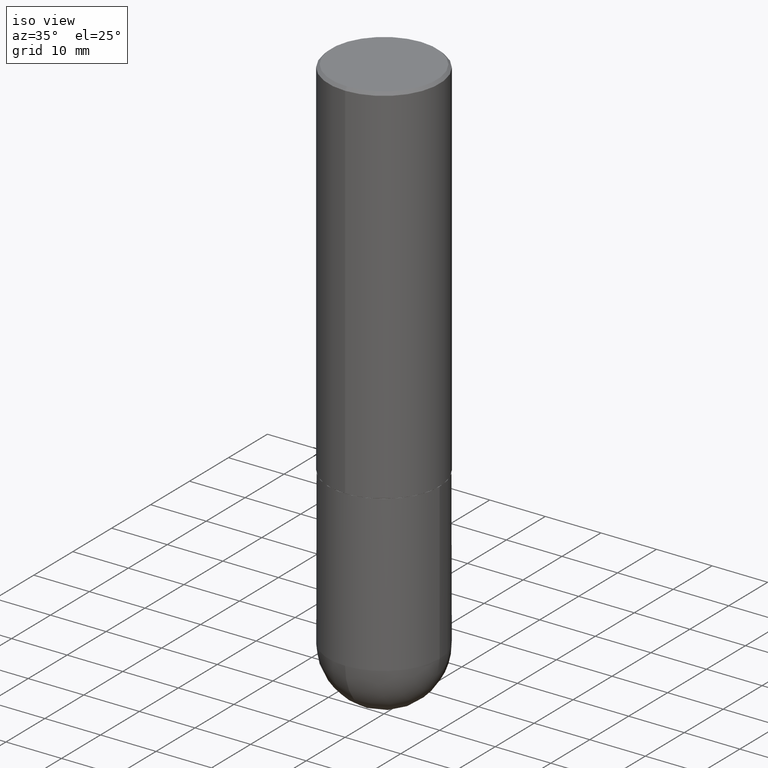
[diagram: clean part render]
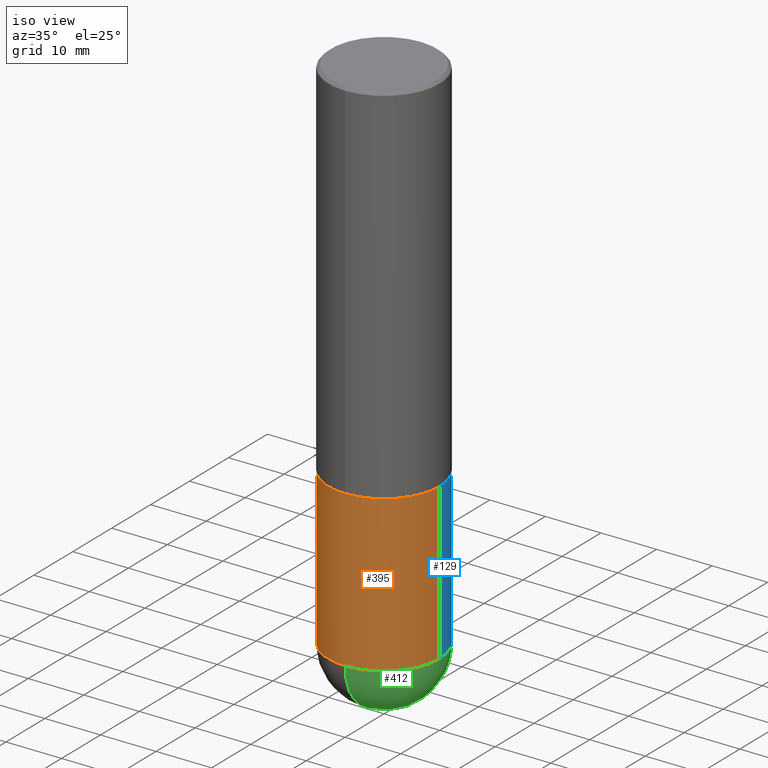
[diagram: same view with three faces highlighted in distinct colors, each labeled with its STEP entity id]
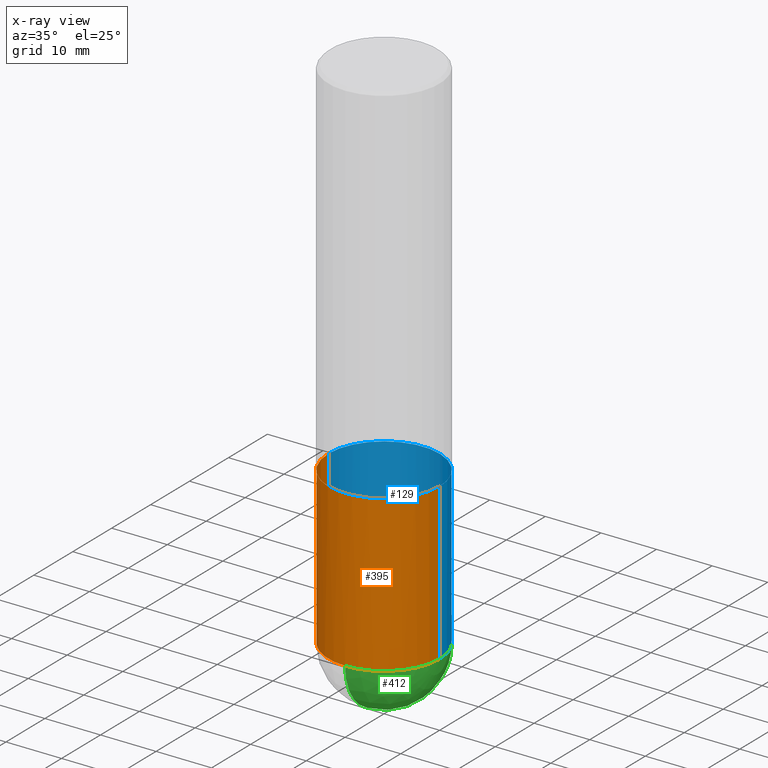
[diagram: x-ray of the same camera — body ghosted, the three highlighted faces saturated]
A machine part, iso view with three faces highlighted in distinct colors.
The next image is the same camera in x-ray (body ghosted, the three faces saturated) — at least one of them is partly hidden behind the body in this view.
Their STEP definitions:

[orange] entity #395 — the highlighted cylindrical surface (partial cylindrical patch) has radius 10 mm, axis along (-0, 0, 1).
#1 = FACE_OUTER_BOUND ( 'NONE', #329, .T. ) ;
#25 = CARTESIAN_POINT ( 'NONE',  ( -2.797406750687426828E-15, -0.3937000000000133171, -3.700799999999998313 ) ) ;
#27 = DIRECTION ( 'NONE',  ( 1.000000000000000000, -6.982962677686267499E-15, 0.000000000000000000 ) ) ;
#29 = VERTEX_POINT ( 'NONE', #403 ) ;
#37 = CYLINDRICAL_SURFACE ( 'NONE', #364, 0.3937000000000001054 ) ;
#48 = EDGE_CURVE ( 'NONE', #225, #232, #393, .T. ) ;
#51 = CARTESIAN_POINT ( 'NONE',  ( -0.3937000000000001054, 2.797406750687515181E-15, -1.936584745033357016E-29 ) ) ;
#60 = DIRECTION ( 'NONE',  ( 1.000000000000000000, -6.982962677686266711E-15, 0.000000000000000000 ) ) ;
#66 = DIRECTION ( 'NONE',  ( -2.445468806185136597E-29, 3.491481338843145583E-15, 1.000000000000000000 ) ) ;
#77 = EDGE_CURVE ( 'NONE', #29, #350, #242, .T. ) ;
#82 = CARTESIAN_POINT ( 'NONE',  ( -0.3937000000000001054, -8.199362874132859889E-15, -3.700800000000000090 ) ) ;
#89 = DIRECTION ( 'NONE',  ( 1.000000000000000000, -6.982962677686266711E-15, 4.876176775795935793E-29 ) ) ;
#94 = AXIS2_PLACEMENT_3D ( 'NONE', #179, #247, #60 ) ;
#102 = ORIENTED_EDGE ( 'NONE', *, *, #351, .F. ) ;
#128 = ORIENTED_EDGE ( 'NONE', *, *, #236, .T. ) ;
#130 = AXIS2_PLACEMENT_3D ( 'NONE', #277, #66, #320 ) ;
#150 = DIRECTION ( 'NONE',  ( -2.445468806185136597E-29, 3.491481338843145583E-15, 1.000000000000000000 ) ) ;
#165 = AXIS2_PLACEMENT_3D ( 'NONE', #288, #150, #27 ) ;
#166 = VERTEX_POINT ( 'NONE', #25 ) ;
#176 = CIRCLE ( 'NONE', #94, 0.3937000000000001054 ) ;
#179 = CARTESIAN_POINT ( 'NONE',  ( 9.050190957929953666E-29, -1.292127413879071357E-14, -3.700800000000000090 ) ) ;
#186 = CARTESIAN_POINT ( 'NONE',  ( 0.000000000000000000, 0.000000000000000000, 0.000000000000000000 ) ) ;
#200 = VECTOR ( 'NONE', #204, 39.37007874015748143 ) ;
#204 = DIRECTION ( 'NONE',  ( -2.445468806185136877E-29, 3.491481338843145188E-15, 1.000000000000000000 ) ) ;
#225 = VERTEX_POINT ( 'NONE', #82 ) ;
#232 = VERTEX_POINT ( 'NONE', #405 ) ;
#236 = EDGE_CURVE ( 'NONE', #166, #29, #176, .T. ) ;
#239 = CARTESIAN_POINT ( 'NONE',  ( 0.3937000000000001054, -2.749192406205084005E-15, 1.919750796630860452E-29 ) ) ;
#242 = LINE ( 'NONE', #239, #200 ) ;
#244 = DIRECTION ( 'NONE',  ( -2.445468806185136877E-29, 3.491481338843145188E-15, 1.000000000000000000 ) ) ;
#247 = DIRECTION ( 'NONE',  ( -2.445468806185136597E-29, 3.491481338843145583E-15, 1.000000000000000000 ) ) ;
#260 = ORIENTED_EDGE ( 'NONE', *, *, #368, .T. ) ;
#277 = CARTESIAN_POINT ( 'NONE',  ( 9.050190957929953666E-29, -1.292127413879071357E-14, -3.700800000000000090 ) ) ;
#287 = ORIENTED_EDGE ( 'NONE', *, *, #48, .F. ) ;
#288 = CARTESIAN_POINT ( 'NONE',  ( 6.354306145991459756E-29, -9.072265110850031044E-15, -2.598400000000000265 ) ) ;
#294 = ORIENTED_EDGE ( 'NONE', *, *, #77, .T. ) ;
#296 = VECTOR ( 'NONE', #244, 39.37007874015748143 ) ;
#319 = DIRECTION ( 'NONE',  ( -2.445468806185136597E-29, 3.491481338843145583E-15, 1.000000000000000000 ) ) ;
#320 = DIRECTION ( 'NONE',  ( 1.000000000000000000, -6.982962677686266711E-15, 0.000000000000000000 ) ) ;
#322 = CIRCLE ( 'NONE', #130, 0.3937000000000001054 ) ;
#326 = CIRCLE ( 'NONE', #165, 0.3937000000000000499 ) ;
#329 = EDGE_LOOP ( 'NONE', ( #287, #260, #128, #294, #102 ) ) ;
#350 = VERTEX_POINT ( 'NONE', #372 ) ;
#351 = EDGE_CURVE ( 'NONE', #232, #350, #326, .T. ) ;
#364 = AXIS2_PLACEMENT_3D ( 'NONE', #186, #319, #89 ) ;
#368 = EDGE_CURVE ( 'NONE', #225, #166, #322, .T. ) ;
#372 = CARTESIAN_POINT ( 'NONE',  ( 0.3937000000000000499, -1.182145751705511584E-14, -2.598400000000000265 ) ) ;
#393 = LINE ( 'NONE', #51, #296 ) ;
#395 = ADVANCED_FACE ( 'NONE', ( #1 ), #37, .T. ) ;
#403 = CARTESIAN_POINT ( 'NONE',  ( 0.3937000000000001054, -1.374596203102546026E-14, -3.700800000000000090 ) ) ;
#405 = CARTESIAN_POINT ( 'NONE',  ( -0.3937000000000000499, -8.199362874132856734E-15, -2.598400000000000265 ) ) ;

[blue] entity #129 — the highlighted cylindrical surface (partial cylindrical patch) has radius 10 mm, axis along (-0, 0, 1).
#4 = VERTEX_POINT ( 'NONE', #135 ) ;
#15 = FACE_OUTER_BOUND ( 'NONE', #408, .T. ) ;
#29 = VERTEX_POINT ( 'NONE', #403 ) ;
#36 = DIRECTION ( 'NONE',  ( -2.445468806185136597E-29, 3.491481338843145583E-15, 1.000000000000000000 ) ) ;
#40 = AXIS2_PLACEMENT_3D ( 'NONE', #64, #36, #283 ) ;
#45 = AXIS2_PLACEMENT_3D ( 'NONE', #304, #209, #170 ) ;
#48 = EDGE_CURVE ( 'NONE', #225, #232, #393, .T. ) ;
#51 = CARTESIAN_POINT ( 'NONE',  ( -0.3937000000000001054, 2.797406750687515181E-15, -1.936584745033357016E-29 ) ) ;
#64 = CARTESIAN_POINT ( 'NONE',  ( 9.050190957929953666E-29, -1.292127413879071357E-14, -3.700800000000000090 ) ) ;
#76 = ORIENTED_EDGE ( 'NONE', *, *, #399, .T. ) ;
#77 = EDGE_CURVE ( 'NONE', #29, #350, #242, .T. ) ;
#82 = CARTESIAN_POINT ( 'NONE',  ( -0.3937000000000001054, -8.199362874132859889E-15, -3.700800000000000090 ) ) ;
#92 = ORIENTED_EDGE ( 'NONE', *, *, #77, .F. ) ;
#107 = DIRECTION ( 'NONE',  ( 1.000000000000000000, -6.982962677686266711E-15, 4.876176775795935793E-29 ) ) ;
#109 = CIRCLE ( 'NONE', #398, 0.3937000000000001054 ) ;
#114 = EDGE_CURVE ( 'NONE', #350, #232, #373, .T. ) ;
#129 = ADVANCED_FACE ( 'NONE', ( #15 ), #141, .T. ) ;
#135 = CARTESIAN_POINT ( 'NONE',  ( 2.749192406205173147E-15, 0.3936999999999871158, -3.700800000000001866 ) ) ;
#138 = CARTESIAN_POINT ( 'NONE',  ( 0.000000000000000000, 0.000000000000000000, 0.000000000000000000 ) ) ;
#141 = CYLINDRICAL_SURFACE ( 'NONE', #382, 0.3937000000000001054 ) ;
#163 = ORIENTED_EDGE ( 'NONE', *, *, #48, .T. ) ;
#170 = DIRECTION ( 'NONE',  ( 1.000000000000000000, -6.982962677686267499E-15, 0.000000000000000000 ) ) ;
#190 = ORIENTED_EDGE ( 'NONE', *, *, #284, .T. ) ;
#200 = VECTOR ( 'NONE', #204, 39.37007874015748143 ) ;
#204 = DIRECTION ( 'NONE',  ( -2.445468806185136877E-29, 3.491481338843145188E-15, 1.000000000000000000 ) ) ;
#209 = DIRECTION ( 'NONE',  ( -2.445468806185136597E-29, 3.491481338843145583E-15, 1.000000000000000000 ) ) ;
#223 = CARTESIAN_POINT ( 'NONE',  ( 9.050190957929953666E-29, -1.292127413879071357E-14, -3.700800000000000090 ) ) ;
#225 = VERTEX_POINT ( 'NONE', #82 ) ;
#232 = VERTEX_POINT ( 'NONE', #405 ) ;
#239 = CARTESIAN_POINT ( 'NONE',  ( 0.3937000000000001054, -2.749192406205084005E-15, 1.919750796630860452E-29 ) ) ;
#242 = LINE ( 'NONE', #239, #200 ) ;
#244 = DIRECTION ( 'NONE',  ( -2.445468806185136877E-29, 3.491481338843145188E-15, 1.000000000000000000 ) ) ;
#271 = CIRCLE ( 'NONE', #40, 0.3937000000000001054 ) ;
#283 = DIRECTION ( 'NONE',  ( 1.000000000000000000, -6.982962677686266711E-15, 0.000000000000000000 ) ) ;
#284 = EDGE_CURVE ( 'NONE', #4, #225, #271, .T. ) ;
#285 = DIRECTION ( 'NONE',  ( -2.445468806185136597E-29, 3.491481338843145583E-15, 1.000000000000000000 ) ) ;
#293 = ORIENTED_EDGE ( 'NONE', *, *, #114, .F. ) ;
#296 = VECTOR ( 'NONE', #244, 39.37007874015748143 ) ;
#304 = CARTESIAN_POINT ( 'NONE',  ( 6.354306145991459756E-29, -9.072265110850031044E-15, -2.598400000000000265 ) ) ;
#350 = VERTEX_POINT ( 'NONE', #372 ) ;
#371 = DIRECTION ( 'NONE',  ( -2.445468806185136597E-29, 3.491481338843145583E-15, 1.000000000000000000 ) ) ;
#372 = CARTESIAN_POINT ( 'NONE',  ( 0.3937000000000000499, -1.182145751705511584E-14, -2.598400000000000265 ) ) ;
#373 = CIRCLE ( 'NONE', #45, 0.3937000000000000499 ) ;
#382 = AXIS2_PLACEMENT_3D ( 'NONE', #138, #371, #107 ) ;
#393 = LINE ( 'NONE', #51, #296 ) ;
#398 = AXIS2_PLACEMENT_3D ( 'NONE', #223, #285, #411 ) ;
#399 = EDGE_CURVE ( 'NONE', #29, #4, #109, .T. ) ;
#403 = CARTESIAN_POINT ( 'NONE',  ( 0.3937000000000001054, -1.374596203102546026E-14, -3.700800000000000090 ) ) ;
#405 = CARTESIAN_POINT ( 'NONE',  ( -0.3937000000000000499, -8.199362874132856734E-15, -2.598400000000000265 ) ) ;
#408 = EDGE_LOOP ( 'NONE', ( #190, #163, #293, #92, #76 ) ) ;
#411 = DIRECTION ( 'NONE',  ( 1.000000000000000000, -6.982962677686266711E-15, 0.000000000000000000 ) ) ;

[green] entity #412 — the highlighted spherical surface has radius 10 mm.
#4 = VERTEX_POINT ( 'NONE', #135 ) ;
#23 = DIRECTION ( 'NONE',  ( 6.982962677686265133E-15, 1.000000000000000000, 0.000000000000000000 ) ) ;
#25 = CARTESIAN_POINT ( 'NONE',  ( -2.797406750687426828E-15, -0.3937000000000133171, -3.700799999999998313 ) ) ;
#29 = VERTEX_POINT ( 'NONE', #403 ) ;
#38 = DIRECTION ( 'NONE',  ( 6.982962677686265922E-15, 1.000000000000000000, -4.163344669033671690E-15 ) ) ;
#54 = CARTESIAN_POINT ( 'NONE',  ( 8.719071180016067419E-29, -1.339545650693076387E-14, -3.700800000000000090 ) ) ;
#60 = DIRECTION ( 'NONE',  ( 1.000000000000000000, -6.982962677686266711E-15, 0.000000000000000000 ) ) ;
#65 = CIRCLE ( 'NONE', #87, 0.3937000000000003830 ) ;
#87 = AXIS2_PLACEMENT_3D ( 'NONE', #218, #181, #23 ) ;
#94 = AXIS2_PLACEMENT_3D ( 'NONE', #179, #247, #60 ) ;
#109 = CIRCLE ( 'NONE', #398, 0.3937000000000001054 ) ;
#123 = SPHERICAL_SURFACE ( 'NONE', #220, 0.3937000000000003830 ) ;
#124 = VERTEX_POINT ( 'NONE', #207 ) ;
#125 = CIRCLE ( 'NONE', #358, 0.3937000000000003830 ) ;
#132 = EDGE_CURVE ( 'NONE', #124, #166, #125, .T. ) ;
#135 = CARTESIAN_POINT ( 'NONE',  ( 2.749192406205173147E-15, 0.3936999999999871158, -3.700800000000001866 ) ) ;
#151 = EDGE_LOOP ( 'NONE', ( #256, #299, #202, #352 ) ) ;
#166 = VERTEX_POINT ( 'NONE', #25 ) ;
#176 = CIRCLE ( 'NONE', #94, 0.3937000000000001054 ) ;
#179 = CARTESIAN_POINT ( 'NONE',  ( 9.050190957929953666E-29, -1.292127413879071357E-14, -3.700800000000000090 ) ) ;
#181 = DIRECTION ( 'NONE',  ( 1.000000000000000000, -6.982962677686265922E-15, 4.883557194083112340E-29 ) ) ;
#202 = ORIENTED_EDGE ( 'NONE', *, *, #399, .F. ) ;
#207 = CARTESIAN_POINT ( 'NONE',  ( 9.698686197413653023E-29, -1.474594553779209640E-14, -4.094500000000000028 ) ) ;
#218 = CARTESIAN_POINT ( 'NONE',  ( 8.719071180016067419E-29, -1.339545650693076387E-14, -3.700800000000000090 ) ) ;
#220 = AXIS2_PLACEMENT_3D ( 'NONE', #406, #349, #38 ) ;
#223 = CARTESIAN_POINT ( 'NONE',  ( 9.050190957929953666E-29, -1.292127413879071357E-14, -3.700800000000000090 ) ) ;
#236 = EDGE_CURVE ( 'NONE', #166, #29, #176, .T. ) ;
#247 = DIRECTION ( 'NONE',  ( -2.445468806185136597E-29, 3.491481338843145583E-15, 1.000000000000000000 ) ) ;
#256 = ORIENTED_EDGE ( 'NONE', *, *, #132, .F. ) ;
#285 = DIRECTION ( 'NONE',  ( -2.445468806185136597E-29, 3.491481338843145583E-15, 1.000000000000000000 ) ) ;
#299 = ORIENTED_EDGE ( 'NONE', *, *, #339, .T. ) ;
#337 = DIRECTION ( 'NONE',  ( -7.105427357600999492E-15, -1.000000000000000000, 0.000000000000000000 ) ) ;
#339 = EDGE_CURVE ( 'NONE', #124, #4, #65, .T. ) ;
#342 = FACE_OUTER_BOUND ( 'NONE', #151, .T. ) ;
#349 = DIRECTION ( 'NONE',  ( -1.000000000000000000, 6.982962677686265922E-15, -4.883557194083112340E-29 ) ) ;
#352 = ORIENTED_EDGE ( 'NONE', *, *, #236, .F. ) ;
#358 = AXIS2_PLACEMENT_3D ( 'NONE', #54, #400, #337 ) ;
#398 = AXIS2_PLACEMENT_3D ( 'NONE', #223, #285, #411 ) ;
#399 = EDGE_CURVE ( 'NONE', #29, #4, #109, .T. ) ;
#400 = DIRECTION ( 'NONE',  ( -1.000000000000000000, 7.105427357601001070E-15, -4.926315508542082329E-29 ) ) ;
#403 = CARTESIAN_POINT ( 'NONE',  ( 0.3937000000000001054, -1.374596203102546026E-14, -3.700800000000000090 ) ) ;
#406 = CARTESIAN_POINT ( 'NONE',  ( 8.719071180016067419E-29, -1.339545650693076387E-14, -3.700800000000000090 ) ) ;
#411 = DIRECTION ( 'NONE',  ( 1.000000000000000000, -6.982962677686266711E-15, 0.000000000000000000 ) ) ;
#412 = ADVANCED_FACE ( 'NONE', ( #342 ), #123, .T. ) ;